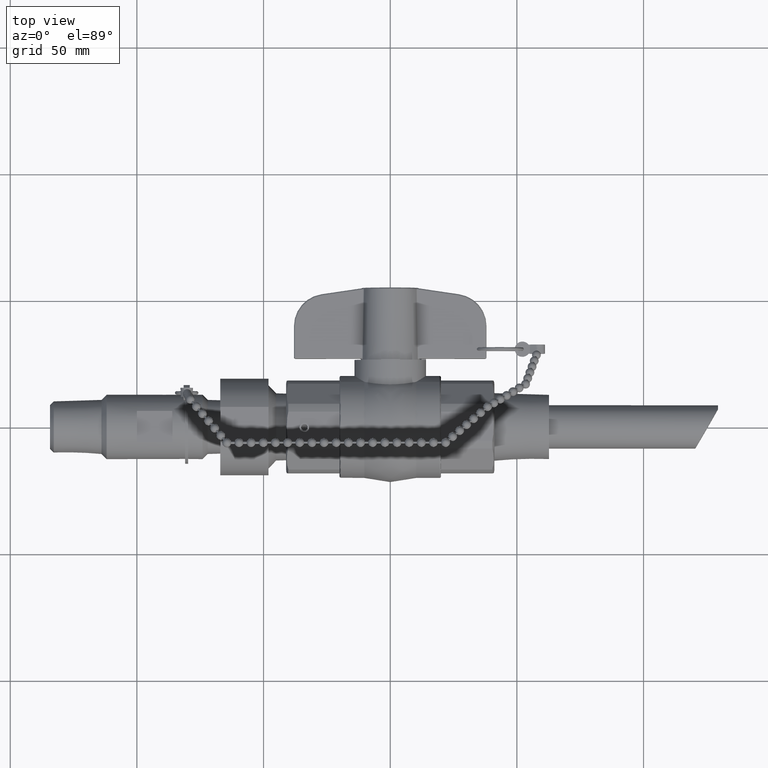
[diagram: clean part render]
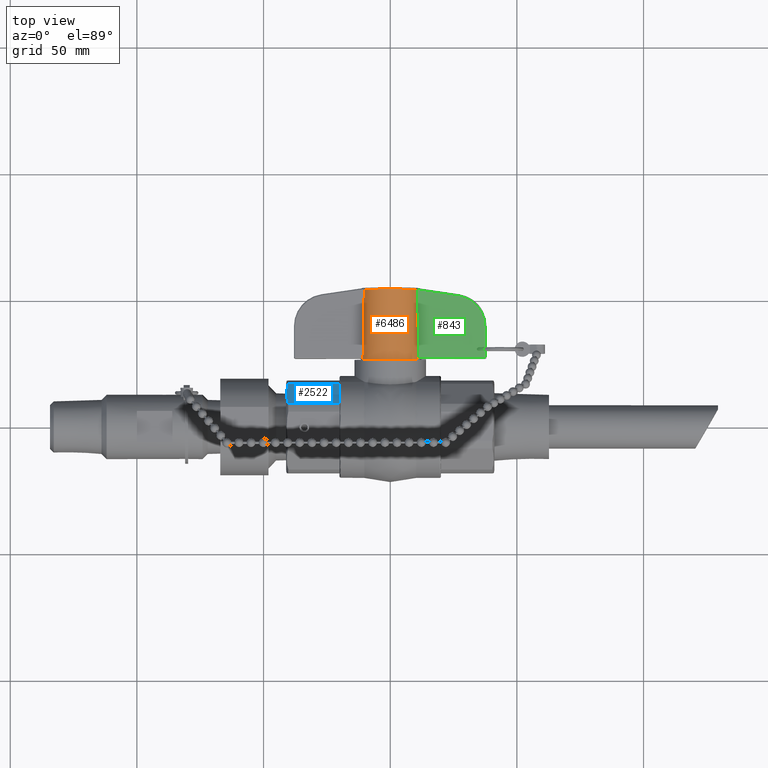
[diagram: same view with three faces highlighted in distinct colors, each labeled with its STEP entity id]
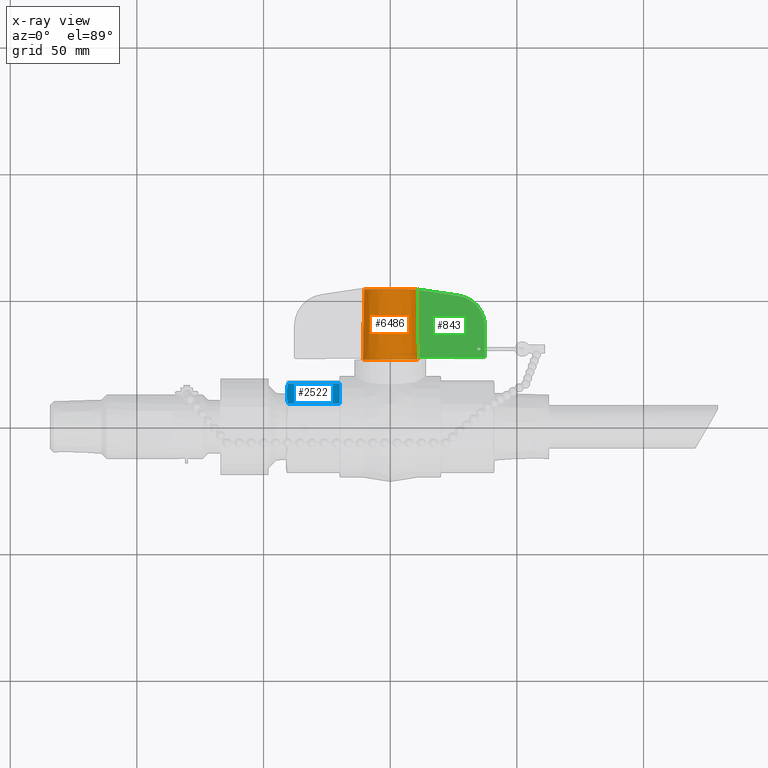
[diagram: x-ray of the same camera — body ghosted, the three highlighted faces saturated]
A machine part, top view with three faces highlighted in distinct colors.
The next image is the same camera in x-ray (body ghosted, the three faces saturated) — at least one of them is partly hidden behind the body in this view.
Their STEP definitions:

[orange] entity #6486 — the highlighted conical surface has half-angle 0.946 deg.
#4495=CARTESIAN_POINT('',(0.430739972639461,1.040000000000394,0.130242373943909));
#4496=VERTEX_POINT('',#4495);
#4783=CARTESIAN_POINT('',(0.422090552734688,1.083314498146997,0.153935573392390));
#4784=VERTEX_POINT('',#4783);
#4792=CARTESIAN_POINT('',(0.422090552734688,1.083314498146997,0.153935573392390));
#4793=CARTESIAN_POINT('',(0.422178705419064,1.078269496393292,0.153937078187910));
#4794=CARTESIAN_POINT('',(0.422727330046334,1.070592734705639,0.152812286233720));
#4795=CARTESIAN_POINT('',(0.424142722330784,1.061305828997520,0.149299207632311));
#4796=CARTESIAN_POINT('',(0.425510632529122,1.054792391963937,0.145695032459271));
#4797=CARTESIAN_POINT('',(0.426841360736471,1.049963670986115,0.141998006578014));
#4798=CARTESIAN_POINT('',(0.428551816911428,1.044781607893881,0.137049402358260));
#4799=CARTESIAN_POINT('',(0.429796613513671,1.041835524655344,0.133257513731591));
#4800=CARTESIAN_POINT('',(0.430739972639512,1.040000000000688,0.130242373943745));
#4801=B_SPLINE_CURVE_WITH_KNOTS('',3,(#4792,#4793,#4794,#4795,#4796,#4797,#4798,#4799,#4800),.UNSPECIFIED.,.F.,.U.,(4,1,1,1,1,1,4),(6.658663E-017,0.038448854804786,0.057673282207179,0.076897709609573,0.096122137011966,0.105734350713162,0.134570991816752),.UNSPECIFIED.);
#4802=EDGE_CURVE('',#4784,#4496,#4801,.T.);
#4832=CARTESIAN_POINT('',(0.403789529625587,2.128422811291274,0.153612069265115));
#4833=VERTEX_POINT('',#4832);
#4841=CARTESIAN_POINT('',(0.403789529625590,2.128422811291081,0.153612069265115));
#4842=CARTESIAN_POINT('',(0.409903597437386,1.780053658202714,0.153723977123758));
#4843=CARTESIAN_POINT('',(0.416003394278470,1.431684208020178,0.153831663584717));
#4844=CARTESIAN_POINT('',(0.422090552734688,1.083314498146997,0.153935573392390));
#4845=B_SPLINE_CURVE_WITH_KNOTS('',3,(#4841,#4842,#4843,#4844),.UNSPECIFIED.,.F.,.U.,(4,4),(-2.654987460304623,0.0),.UNSPECIFIED.);
#4846=EDGE_CURVE('',#4833,#4784,#4845,.T.);
#5789=CARTESIAN_POINT('',(-0.430739972639461,1.040000000000394,0.130242373943909));
#5790=VERTEX_POINT('',#5789);
#5943=CARTESIAN_POINT('',(-0.422090552734688,1.083314498146997,0.153935573392390));
#5944=VERTEX_POINT('',#5943);
#5945=CARTESIAN_POINT('',(-0.430739972639512,1.040000000000688,0.130242373943745));
#5946=CARTESIAN_POINT('',(-0.429796613513671,1.041835524655344,0.133257513731591));
#5947=CARTESIAN_POINT('',(-0.428551816911428,1.044781607893881,0.137049402358261));
#5948=CARTESIAN_POINT('',(-0.426841360736471,1.049963670986115,0.141998006578014));
#5949=CARTESIAN_POINT('',(-0.425510632529122,1.054792391963937,0.145695032459271));
#5950=CARTESIAN_POINT('',(-0.424142722330784,1.061305828997521,0.149299207632311));
#5951=CARTESIAN_POINT('',(-0.422727330046334,1.070592734705638,0.152812286233720));
#5952=CARTESIAN_POINT('',(-0.422178705419064,1.078269496393291,0.153937078187910));
#5953=CARTESIAN_POINT('',(-0.422090552734688,1.083314498146997,0.153935573392390));
#5954=B_SPLINE_CURVE_WITH_KNOTS('',3,(#5945,#5946,#5947,#5948,#5949,#5950,#5951,#5952,#5953),.UNSPECIFIED.,.F.,.U.,(4,1,1,1,1,1,4),(0.068579376846824,0.097416017950413,0.107028231651610,0.126252659054003,0.145477086456396,0.164701513858789,0.203150368663575),.UNSPECIFIED.);
#5955=EDGE_CURVE('',#5790,#5944,#5954,.T.);
#5994=CARTESIAN_POINT('',(-0.403789529625587,2.128422811291274,0.153612069265115));
#5995=VERTEX_POINT('',#5994);
#5996=CARTESIAN_POINT('',(-0.422090552734688,1.083314498146997,0.153935573392390));
#5997=CARTESIAN_POINT('',(-0.416003394278470,1.431684208020178,0.153831663584717));
#5998=CARTESIAN_POINT('',(-0.409903597437386,1.780053658202714,0.153723977123758));
#5999=CARTESIAN_POINT('',(-0.403789529625590,2.128422811291081,0.153612069265115));
#6000=B_SPLINE_CURVE_WITH_KNOTS('',3,(#5996,#5997,#5998,#5999),.UNSPECIFIED.,.F.,.U.,(4,4),(-2.654987460304623,0.0),.UNSPECIFIED.);
#6001=EDGE_CURVE('',#5944,#5995,#6000,.T.);
#6423=CARTESIAN_POINT('',(-0.403839833778994,2.135412890105914,0.153154466628454));
#6424=VERTEX_POINT('',#6423);
#6441=CARTESIAN_POINT('',(-0.403789529625585,2.128422811291276,0.153612069265115));
#6442=CARTESIAN_POINT('',(-0.403748721600086,2.130747982964465,0.153611322341959));
#6443=CARTESIAN_POINT('',(-0.403767026810171,2.133090420804199,0.153455668228547));
#6444=CARTESIAN_POINT('',(-0.403842634367446,2.135411986297645,0.153148328454759));
#6445=B_SPLINE_CURVE_WITH_KNOTS('',3,(#6441,#6442,#6443,#6444),.UNSPECIFIED.,.F.,.U.,(4,4),(0.0,0.017720574800169),.UNSPECIFIED.);
#6446=EDGE_CURVE('',#5995,#6424,#6445,.T.);
#6451=CARTESIAN_POINT('',(4.207259E-017,1.600000000000000,-1.959435E-016));
#6452=DIRECTION('',(-7.512962E-017,-1.0,1.224647E-016));
#6453=DIRECTION('',(-1.0,0.0,0.0));
#6454=AXIS2_PLACEMENT_3D('',#6451,#6452,#6453);
#6455=CONICAL_SURFACE('',#6454,0.440750000000000,0.946317442854332);
#6456=CARTESIAN_POINT('',(0.403839833778993,2.135412890105901,0.153154466628458));
#6457=VERTEX_POINT('',#6456);
#6458=CARTESIAN_POINT('',(5.585133E-017,2.135412890106026,-2.615127E-016));
#6459=DIRECTION('',(-6.527589E-029,1.0,-1.224647E-016));
#6460=DIRECTION('',(5.330181E-013,1.224647E-016,1.0));
#6461=AXIS2_PLACEMENT_3D('',#6458,#6459,#6460);
#6462=CIRCLE('',#6461,0.431906126368784);
#6463=EDGE_CURVE('',#6424,#6457,#6462,.T.);
#6464=ORIENTED_EDGE('',*,*,#6463,.F.);
#6465=ORIENTED_EDGE('',*,*,#6446,.F.);
#6466=ORIENTED_EDGE('',*,*,#6001,.F.);
#6467=ORIENTED_EDGE('',*,*,#5955,.F.);
#6468=CARTESIAN_POINT('',(-1.077524E-047,1.040000000000000,-1.273633E-016));
#6469=DIRECTION('',(0.0,-1.0,0.0));
#6470=DIRECTION('',(-1.0,0.0,0.0));
#6471=AXIS2_PLACEMENT_3D('',#6468,#6469,#6470);
#6472=CIRCLE('',#6471,0.450000000000000);
#6473=EDGE_CURVE('',#4496,#5790,#6472,.T.);
#6474=ORIENTED_EDGE('',*,*,#6473,.F.);
#6475=ORIENTED_EDGE('',*,*,#4802,.F.);
#6476=ORIENTED_EDGE('',*,*,#4846,.F.);
#6477=CARTESIAN_POINT('',(0.403842634367447,2.135411986297632,0.153148328454761));
#6478=CARTESIAN_POINT('',(0.403767026810172,2.133090420804190,0.153455668228547));
#6479=CARTESIAN_POINT('',(0.403748721600087,2.130747982964460,0.153611322341959));
#6480=CARTESIAN_POINT('',(0.403789529625586,2.128422811291276,0.153612069265115));
#6481=B_SPLINE_CURVE_WITH_KNOTS('',3,(#6477,#6478,#6479,#6480),.UNSPECIFIED.,.F.,.U.,(4,4),(0.183351334731766,0.201071909531905),.UNSPECIFIED.);
#6482=EDGE_CURVE('',#6457,#4833,#6481,.T.);
#6483=ORIENTED_EDGE('',*,*,#6482,.F.);
#6484=EDGE_LOOP('',(#6464,#6465,#6466,#6467,#6474,#6475,#6476,#6483));
#6485=FACE_OUTER_BOUND('',#6484,.T.);
#6486=ADVANCED_FACE('',(#6485),#6455,.T.);

[blue] entity #2522 — the highlighted planar face has unit normal (-0, 0.7071, 0.7071).
#2476=CARTESIAN_POINT('',(-1.618000000000000,0.297198231002696,0.717500000000000));
#2477=DIRECTION('',(-8.659561E-017,0.707106781186548,0.707106781186548));
#2478=DIRECTION('',(1.0,0.0,0.0));
#2479=AXIS2_PLACEMENT_3D('',#2476,#2477,#2478);
#2480=PLANE('',#2479);
#2481=CARTESIAN_POINT('',(-0.788000000000000,0.666562415825159,0.348135815177537));
#2482=VERTEX_POINT('',#2481);
#2483=CARTESIAN_POINT('',(-1.585112702674458,0.666562415893347,0.348135815085369));
#2484=VERTEX_POINT('',#2483);
#2485=CARTESIAN_POINT('',(-0.788000000000000,0.666562415825159,0.348135815177537));
#2486=DIRECTION('',(-1.0,0.0,0.0));
#2487=VECTOR('',#2486,0.797112702674458);
#2488=LINE('',#2485,#2487);
#2489=EDGE_CURVE('',#2482,#2484,#2488,.T.);
#2490=ORIENTED_EDGE('',*,*,#2489,.T.);
#2491=CARTESIAN_POINT('',(-1.585112702674458,0.348135815085369,0.666562415893346));
#2492=VERTEX_POINT('',#2491);
#2493=CARTESIAN_POINT('',(-1.585112702675817,0.348135815097095,0.666562415905600));
#2494=CARTESIAN_POINT('',(-1.593438193005176,0.369568724909197,0.645129506093499));
#2495=CARTESIAN_POINT('',(-1.598495457444079,0.392660377409582,0.622037853593114));
#2496=CARTESIAN_POINT('',(-1.606212016415179,0.447108212775789,0.567590018226907));
#2497=CARTESIAN_POINT('',(-1.607564392373896,0.478639599334777,0.536058631667919));
#2498=CARTESIAN_POINT('',(-1.607564392373896,0.536058631667919,0.478639599334777));
#2499=CARTESIAN_POINT('',(-1.606212016415179,0.567590018226907,0.447108212775789));
#2500=CARTESIAN_POINT('',(-1.598495457444079,0.622037853593114,0.392660377409581));
#2501=CARTESIAN_POINT('',(-1.593438193005176,0.645129506093499,0.369568724909197));
#2502=CARTESIAN_POINT('',(-1.585112702675817,0.666562415905601,0.348135815097095));
#2503=B_SPLINE_CURVE_WITH_KNOTS('',3,(#2493,#2494,#2495,#2496,#2497,#2498,#2499,#2500,#2501,#2502),.UNSPECIFIED.,.F.,.U.,(4,2,2,2,4),(1.287546716189350,1.519762369350838,1.829144939296182,2.138527509241525,2.370743162403015),.UNSPECIFIED.);
#2504=EDGE_CURVE('',#2492,#2484,#2503,.T.);
#2505=ORIENTED_EDGE('',*,*,#2504,.F.);
#2506=CARTESIAN_POINT('',(-0.788000000000000,0.348135815177537,0.666562415825159));
#2507=VERTEX_POINT('',#2506);
#2508=CARTESIAN_POINT('',(-1.585112702674458,0.348135815177537,0.666562415825159));
#2509=DIRECTION('',(1.0,0.0,0.0));
#2510=VECTOR('',#2509,0.797112702674458);
#2511=LINE('',#2508,#2510);
#2512=EDGE_CURVE('',#2492,#2507,#2511,.T.);
#2513=ORIENTED_EDGE('',*,*,#2512,.T.);
#2514=CARTESIAN_POINT('',(-0.788000000000000,0.348135815177537,0.666562415825159));
#2515=DIRECTION('',(0.0,0.707106781186547,-0.707106781186547));
#2516=VECTOR('',#2515,0.450323217256228);
#2517=LINE('',#2514,#2516);
#2518=EDGE_CURVE('',#2507,#2482,#2517,.T.);
#2519=ORIENTED_EDGE('',*,*,#2518,.T.);
#2520=EDGE_LOOP('',(#2490,#2505,#2513,#2519));
#2521=FACE_OUTER_BOUND('',#2520,.T.);
#2522=ADVANCED_FACE('',(#2521),#2480,.T.);

[green] entity #843 — the highlighted planar face has unit normal (0, 0, -1).
#753=CARTESIAN_POINT('',(1.345856689942063,1.208727388252555,0.137500000000000));
#754=DIRECTION('',(0.0,0.0,-1.0));
#755=DIRECTION('',(-1.0,0.0,0.0));
#756=AXIS2_PLACEMENT_3D('',#753,#754,#755);
#757=PLANE('',#756);
#758=CARTESIAN_POINT('',(0.445574166567385,1.083727388252774,0.137500000000000));
#759=VERTEX_POINT('',#758);
#760=CARTESIAN_POINT('',(0.427152624647668,2.128835701397095,0.137500000000000));
#761=VERTEX_POINT('',#760);
#762=CARTESIAN_POINT('',(0.445574166567385,1.083727388253023,0.137500000000000));
#763=CARTESIAN_POINT('',(0.439449112413853,1.432097098126204,0.137500000000000));
#764=CARTESIAN_POINT('',(0.433309265127861,1.780466548308741,0.137500000000000));
#765=CARTESIAN_POINT('',(0.427152624647702,2.128835701397108,0.137500000000000));
#766=B_SPLINE_CURVE_WITH_KNOTS('',3,(#762,#763,#764,#765),.UNSPECIFIED.,.F.,.U.,(4,4),(0.0,2.654987460304623),.UNSPECIFIED.);
#767=EDGE_CURVE('',#759,#761,#766,.T.);
#768=ORIENTED_EDGE('',*,*,#767,.F.);
#769=CARTESIAN_POINT('',(1.470856689942063,1.083727388252525,0.137500000000000));
#770=VERTEX_POINT('',#769);
#771=CARTESIAN_POINT('',(1.470856689942063,1.083727388252525,0.137500000000000));
#772=DIRECTION('',(-1.0,0.0,0.0));
#773=VECTOR('',#772,1.025282523374679);
#774=LINE('',#771,#773);
#775=EDGE_CURVE('',#770,#759,#774,.T.);
#776=ORIENTED_EDGE('',*,*,#775,.F.);
#777=CARTESIAN_POINT('',(1.470856689942063,1.564720401550960,0.137500000000000));
#778=VERTEX_POINT('',#777);
#779=CARTESIAN_POINT('',(1.470856689942063,1.564720401550960,0.137500000000000));
#780=DIRECTION('',(0.0,-1.0,0.0));
#781=VECTOR('',#780,0.480993013298435);
#782=LINE('',#779,#781);
#783=EDGE_CURVE('',#778,#770,#782,.T.);
#784=ORIENTED_EDGE('',*,*,#783,.F.);
#785=CARTESIAN_POINT('',(1.065235671589503,2.034626303733051,0.137500000000000));
#786=VERTEX_POINT('',#785);
#787=CARTESIAN_POINT('',(0.995856689942063,1.564720401550960,0.137500000000000));
#788=DIRECTION('',(3.043507E-018,2.627144E-018,-1.0));
#789=DIRECTION('',(0.756987785236529,0.653429026752481,4.020550E-018));
#790=AXIS2_PLACEMENT_3D('',#787,#788,#789);
#791=CIRCLE('',#790,0.475000000000000);
#792=EDGE_CURVE('',#786,#778,#791,.T.);
#793=ORIENTED_EDGE('',*,*,#792,.F.);
#794=CARTESIAN_POINT('',(0.427152624647657,2.128835701397024,0.137500000000000));
#795=DIRECTION('',(0.989275583541243,-0.146061013994610,1.290956E-016));
#796=VECTOR('',#795,0.645000298761790);
#797=LINE('',#794,#796);
#798=EDGE_CURVE('',#761,#786,#797,.T.);
#799=ORIENTED_EDGE('',*,*,#798,.F.);
#800=EDGE_LOOP('',(#768,#776,#784,#793,#799));
#801=FACE_OUTER_BOUND('',#800,.T.);
#802=CARTESIAN_POINT('',(1.345993045709420,1.208727388252560,0.137500000000000));
#803=VERTEX_POINT('',#802);
#804=CARTESIAN_POINT('',(1.345993045709421,1.208727388252560,0.137500000000000));
#805=CARTESIAN_POINT('',(1.345993045709421,1.211740251323850,0.137500000000000));
#806=CARTESIAN_POINT('',(1.346733493259953,1.215279052338493,0.137500000000000));
#807=CARTESIAN_POINT('',(1.349164045118661,1.220914535686941,0.137500000000000));
#808=CARTESIAN_POINT('',(1.351323604086384,1.223979432734948,0.137500000000000));
#809=CARTESIAN_POINT('',(1.355946035975145,1.228404767323791,0.137500000000000));
#810=CARTESIAN_POINT('',(1.359268477006534,1.230503509633553,0.137500000000000));
#811=CARTESIAN_POINT('',(1.365496906038113,1.232972322280411,0.137500000000000));
#812=CARTESIAN_POINT('',(1.369537006189481,1.233727388252560,0.137500000000000));
#813=CARTESIAN_POINT('',(1.376407745211342,1.233727388252560,0.137500000000000));
#814=CARTESIAN_POINT('',(1.380471710944468,1.232965131662658,0.137500000000000));
#815=CARTESIAN_POINT('',(1.386770211086961,1.230489065643513,0.137500000000000));
#816=CARTESIAN_POINT('',(1.390151314288874,1.228377254616270,0.137500000000000));
#817=CARTESIAN_POINT('',(1.394853797108662,1.223934123386621,0.137500000000000));
#818=CARTESIAN_POINT('',(1.397056079715823,1.220865621632486,0.137500000000000));
#819=CARTESIAN_POINT('',(1.399521189126134,1.215238630876034,0.137500000000000));
#820=CARTESIAN_POINT('',(1.400272801402033,1.211723157627600,0.137500000000000));
#821=CARTESIAN_POINT('',(1.400272801402033,1.205663729900947,0.137500000000000));
#822=CARTESIAN_POINT('',(1.399487093939227,1.202072280698147,0.137500000000000));
#823=CARTESIAN_POINT('',(1.396912474933222,1.196335739922185,0.137500000000000));
#824=CARTESIAN_POINT('',(1.394614222928789,1.193223334815188,0.137500000000000));
#825=CARTESIAN_POINT('',(1.389829760274482,1.188856131932264,0.137500000000000));
#826=CARTESIAN_POINT('',(1.386492900152518,1.186828640841416,0.137500000000000));
#827=CARTESIAN_POINT('',(1.380308781335399,1.184456832002986,0.137500000000000));
#828=CARTESIAN_POINT('',(1.376331627888049,1.183727388252560,0.137500000000000));
#829=CARTESIAN_POINT('',(1.369537006189480,1.183727388252560,0.137500000000000));
#830=CARTESIAN_POINT('',(1.365496906038112,1.184482454224709,0.137500000000000));
#831=CARTESIAN_POINT('',(1.359268477006533,1.186951266871568,0.137500000000000));
#832=CARTESIAN_POINT('',(1.355946035975144,1.189050009181330,0.137500000000000));
#833=CARTESIAN_POINT('',(1.351323604086383,1.193475343770173,0.137500000000000));
#834=CARTESIAN_POINT('',(1.349164045118660,1.196540240818180,0.137500000000000));
#835=CARTESIAN_POINT('',(1.346733493259953,1.202175724166628,0.137500000000000));
#836=CARTESIAN_POINT('',(1.345993045709421,1.205714525181271,0.137500000000000));
#837=CARTESIAN_POINT('',(1.345993045709421,1.208727388252560,0.137500000000000));
#838=B_SPLINE_CURVE_WITH_KNOTS('',3,(#804,#805,#806,#807,#808,#809,#810,#811,#812,#813,#814,#815,#816,#817,#818,#819,#820,#821,#822,#823,#824,#825,#826,#827,#828,#829,#830,#831,#832,#833,#834,#835,#836,#837),.UNSPECIFIED.,.T.,.U.,(4,2,2,2,2,2,2,2,2,2,2,2,2,2,2,2,4),(0.0,0.022958016603224,0.046766104087360,0.071720338652031,0.097819173805801,0.124075369998606,0.149389184993173,0.173373154072530,0.196200916710336,0.219545993349633,0.244114034063361,0.268907800438422,0.294583982627748,0.320682817781518,0.345637052346188,0.369445139830324,0.392403156433547),.UNSPECIFIED.);
#839=EDGE_CURVE('',#803,#803,#838,.T.);
#840=ORIENTED_EDGE('',*,*,#839,.T.);
#841=EDGE_LOOP('',(#840));
#842=FACE_BOUND('',#841,.T.);
#843=ADVANCED_FACE('',(#801,#842),#757,.F.);